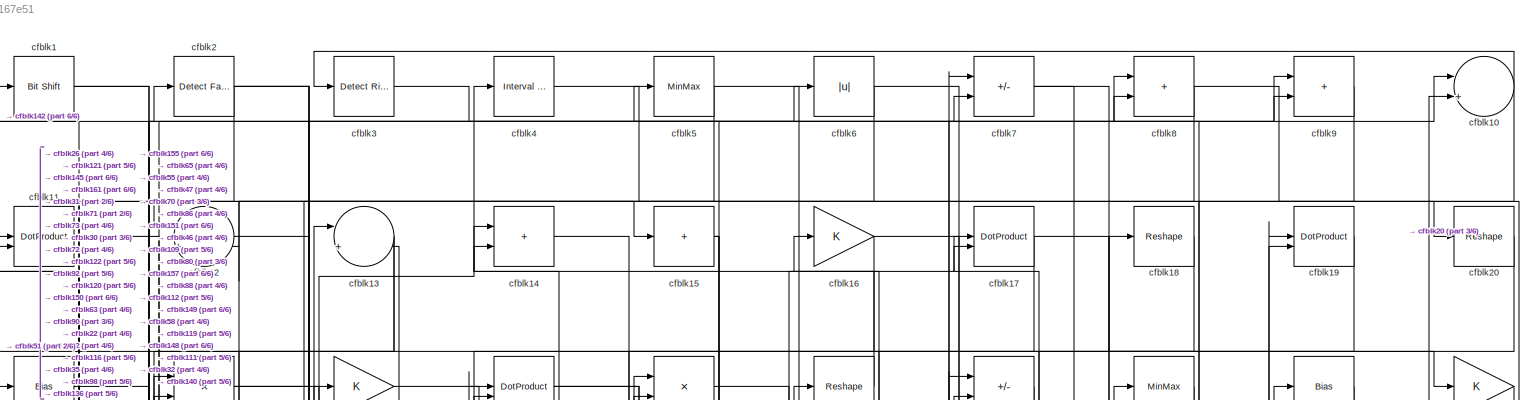
[diagram: root canvas - part 1/6, full width, top band]
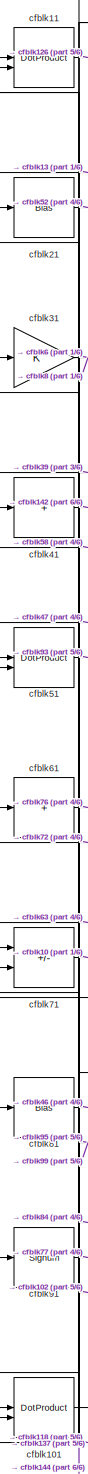
[diagram: root canvas - part 2/6, middle left region]
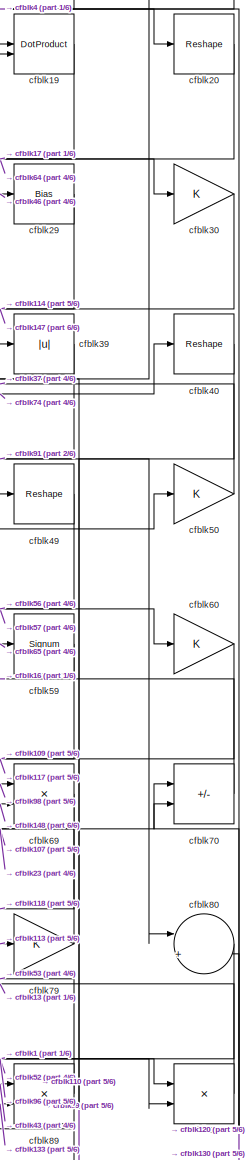
[diagram: root canvas - part 3/6, top right region]
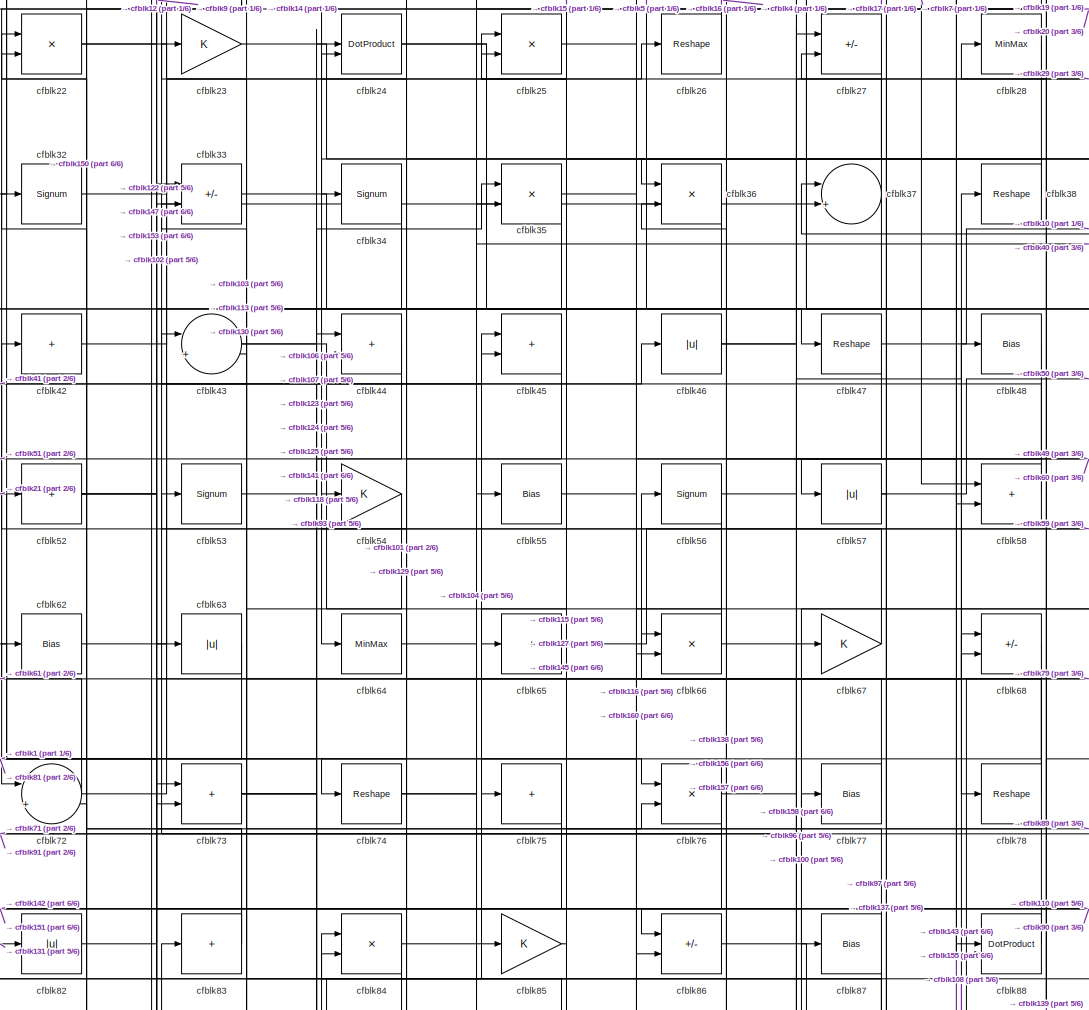
[diagram: root canvas - part 4/6, top center region]
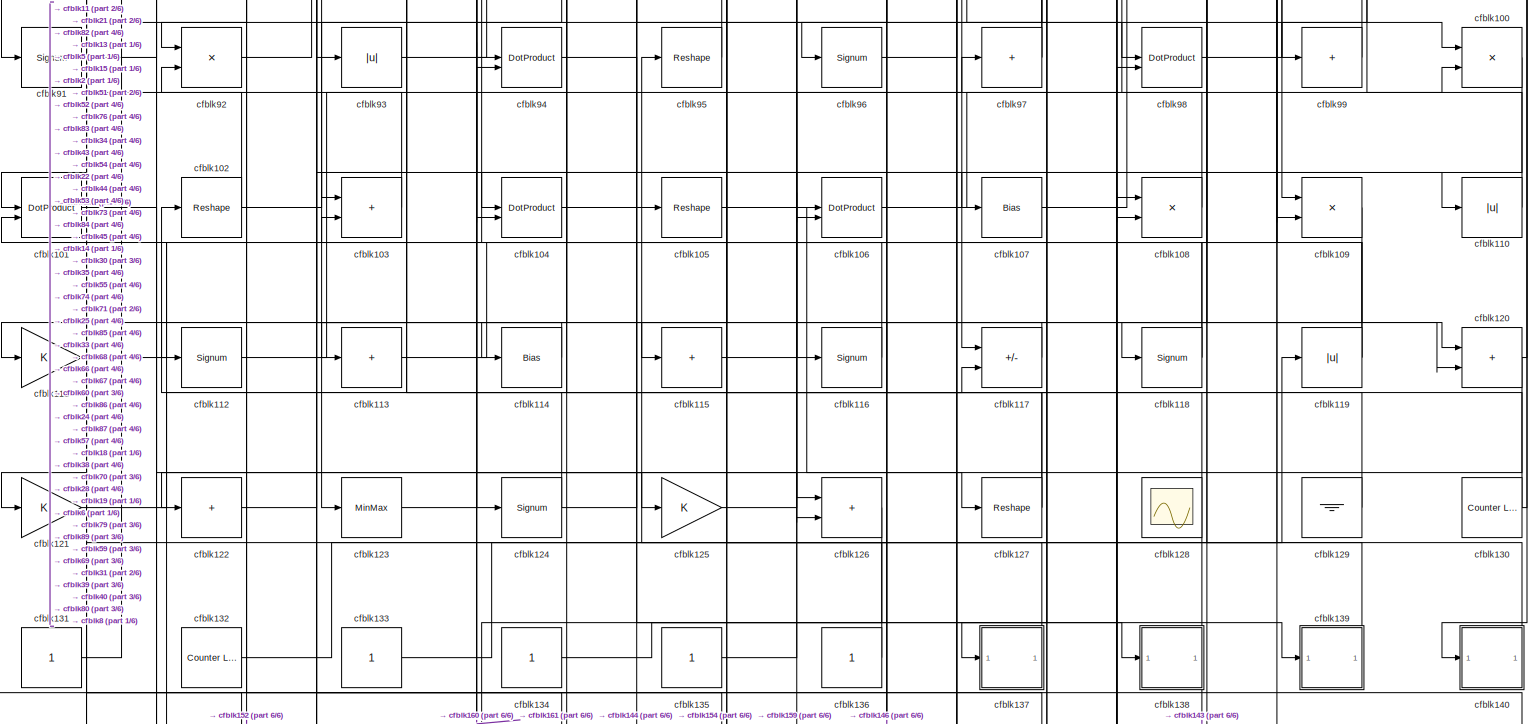
[diagram: root canvas - part 5/6, full width, bottom band]
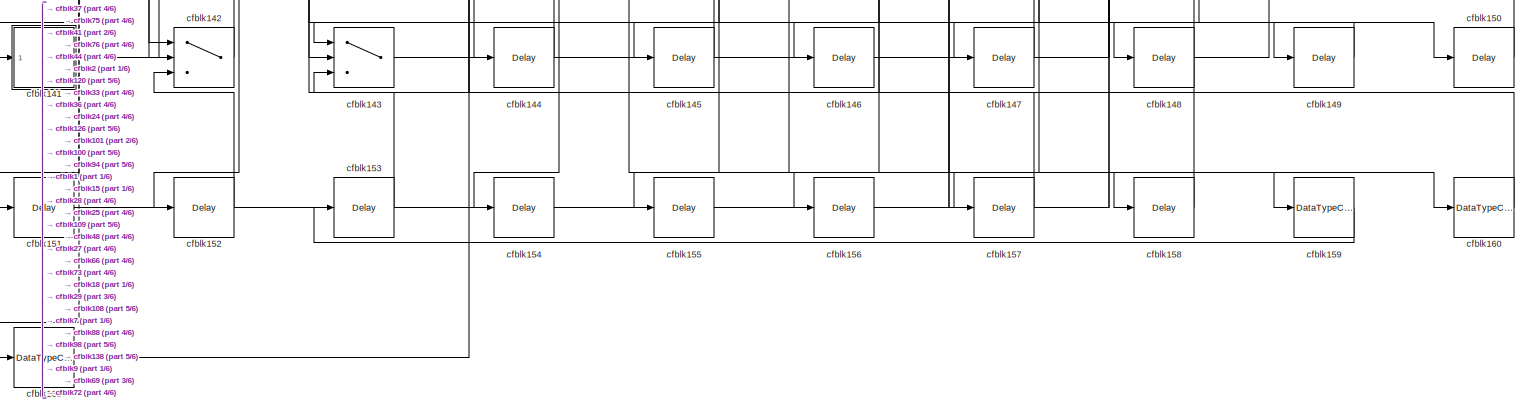
[diagram: root canvas - part 6/6, full width, bottom band]
MODEL slx_d6f4b8167e51
KIND model
CONFIG AbsTol = auto
CONFIG EnableMultiTasking = off
CONFIG FixedStep = auto
CONFIG MaxStep = auto
CONFIG MinStep = auto
CONFIG RelTol = 1e-3
CONFIG SampleTimeConstraint = Unconstrained
CONFIG SolverName = VariableStepAuto
CONFIG StartTime = 0.0
CONFIG StopTime = 10.0
BLOCK [Reference] cfblk1  REF=hdlsllib/Logic and Bit
Operations/Bit Shift
  SourceBlock = hdlsllib/Logic and Bit\nOperations/Bit Shift
  SourceType = Bit Shift
BLOCK [Sum] cfblk10
  Inputs = |++
BLOCK [Product] cfblk100
  Inputs = */
  RndMeth = Zero
  SaturateOnIntegerOverflow = on
BLOCK [DotProduct] cfblk101
  OutDataTypeStr = Inherit: Inherit via internal rule
BLOCK [Reshape] cfblk102
BLOCK [Sum] cfblk103
  IconShape = rectangular
BLOCK [DotProduct] cfblk104
  OutDataTypeStr = Inherit: Inherit via internal rule
BLOCK [Reshape] cfblk105
BLOCK [DotProduct] cfblk106
  OutDataTypeStr = Inherit: Inherit via internal rule
BLOCK [Bias] cfblk107
  Bias = 0.0
  SaturateOnIntegerOverflow = off
BLOCK [Product] cfblk108
  Inputs = */
  RndMeth = Zero
  SaturateOnIntegerOverflow = on
BLOCK [Product] cfblk109
  Inputs = */
  RndMeth = Zero
  SaturateOnIntegerOverflow = on
BLOCK [DotProduct] cfblk11
  OutDataTypeStr = Inherit: Inherit via internal rule
BLOCK [Abs] cfblk110
  SaturateOnIntegerOverflow = off
BLOCK [Gain] cfblk111
BLOCK [Signum] cfblk112
BLOCK [Sum] cfblk113
  IconShape = rectangular
  Inputs = +
BLOCK [Bias] cfblk114
  Bias = 0.0
  SaturateOnIntegerOverflow = off
BLOCK [Sum] cfblk115
  IconShape = rectangular
  Inputs = +
BLOCK [Signum] cfblk116
BLOCK [Sum] cfblk117
  IconShape = rectangular
  Inputs = +-
BLOCK [Signum] cfblk118
BLOCK [Abs] cfblk119
  SaturateOnIntegerOverflow = off
BLOCK [Sum] cfblk12
  Inputs = |++
BLOCK [Sum] cfblk120
  IconShape = rectangular
BLOCK [Gain] cfblk121
BLOCK [Sum] cfblk122
  IconShape = rectangular
  Inputs = +
BLOCK [MinMax] cfblk123
BLOCK [Signum] cfblk124
BLOCK [Gain] cfblk125
BLOCK [Sum] cfblk126
  IconShape = rectangular
BLOCK [Reshape] cfblk127
BLOCK [Scope] cfblk128
  Floating = on
  NumInputPorts = 1
  ScopeSpecificationString = Simulink.scopes.TimeScopeBlockCfg('CurrentConfiguration', extmgr.ConfigurationSet(extmgr.Configuration('Core','General UI',true,'FigureColor',[0.156862745098039 0.156862745098039 0.156862745098039]),extmgr.Configuration('Core','Source UI',true),extmgr.Configuration('Sources','WiredSimulink',true,'DataLoggingVariableName','ScopeData1','DataLoggingSaveFormat','StructureWithTime','DataLoggingLimitDat...<+2713ch>
BLOCK [Ground] cfblk129
BLOCK [Sum] cfblk13
  Inputs = |++
BLOCK [Reference] cfblk130  REF=hdlsllib/Sources/Counter
Limited
  SourceBlock = hdlsllib/Sources/Counter\nLimited
  SourceType = Counter Limited
BLOCK [Constant] cfblk131
  SampleTime = -1
BLOCK [Reference] cfblk132  REF=hdlsllib/Sources/Counter
Limited
  SourceBlock = hdlsllib/Sources/Counter\nLimited
  SourceType = Counter Limited
BLOCK [Constant] cfblk133
  SampleTime = -1
BLOCK [Constant] cfblk134
  SampleTime = -1
BLOCK [Constant] cfblk135
  SampleTime = -1
BLOCK [Constant] cfblk136
  SampleTime = -1
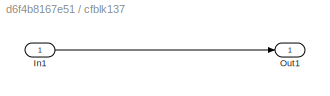
BLOCK [SubSystem] cfblk137
  LibrarySourceBlock = hdlsllib/Ports &\nSubsystems/Subsystem
BLOCK [Inport] cfblk137/In1
BLOCK [Outport] cfblk137/Out1
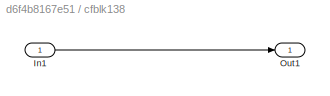
BLOCK [SubSystem] cfblk138
  LibrarySourceBlock = hdlsllib/Ports &\nSubsystems/Subsystem
BLOCK [Inport] cfblk138/In1
BLOCK [Outport] cfblk138/Out1
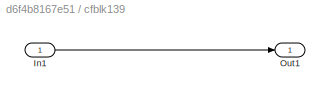
BLOCK [SubSystem] cfblk139
  LibrarySourceBlock = hdlsllib/Ports &\nSubsystems/Subsystem
BLOCK [Inport] cfblk139/In1
BLOCK [Outport] cfblk139/Out1
BLOCK [Sum] cfblk14
  IconShape = rectangular
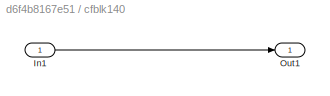
BLOCK [SubSystem] cfblk140
  LibrarySourceBlock = hdlsllib/Ports &\nSubsystems/Subsystem
BLOCK [Inport] cfblk140/In1
BLOCK [Outport] cfblk140/Out1
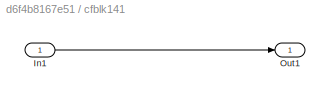
BLOCK [SubSystem] cfblk141
  LibrarySourceBlock = hdlsllib/Ports &\nSubsystems/Subsystem
BLOCK [Inport] cfblk141/In1
BLOCK [Outport] cfblk141/Out1
BLOCK [Switch] cfblk142
  InputSameDT = off
  SaturateOnIntegerOverflow = off
BLOCK [Switch] cfblk143
  InputSameDT = off
  SaturateOnIntegerOverflow = off
BLOCK [Delay] cfblk144
  InputPortMap = u0
  SampleTime = 1
BLOCK [Delay] cfblk145
  InputPortMap = u0
  SampleTime = 1
BLOCK [Delay] cfblk146
  InputPortMap = u0
  SampleTime = 1
BLOCK [Delay] cfblk147
  InputPortMap = u0
  SampleTime = 1
BLOCK [Delay] cfblk148
  InputPortMap = u0
  SampleTime = 1
BLOCK [Delay] cfblk149
  InputPortMap = u0
  SampleTime = 1
BLOCK [Sum] cfblk15
  IconShape = rectangular
  Inputs = +
BLOCK [Delay] cfblk150
  InputPortMap = u0
  SampleTime = 1
BLOCK [Delay] cfblk151
  InputPortMap = u0
  SampleTime = 1
BLOCK [Delay] cfblk152
  InputPortMap = u0
  SampleTime = 1
BLOCK [Delay] cfblk153
  InputPortMap = u0
  SampleTime = 1
BLOCK [Delay] cfblk154
  InputPortMap = u0
  SampleTime = 1
BLOCK [Delay] cfblk155
  InputPortMap = u0
  SampleTime = 1
BLOCK [Delay] cfblk156
  InputPortMap = u0
  SampleTime = 1
BLOCK [Delay] cfblk157
  InputPortMap = u0
  SampleTime = 1
BLOCK [Delay] cfblk158
  InputPortMap = u0
  SampleTime = 1
BLOCK [DataTypeConversion] cfblk159
  OutDataTypeStr = uint8
  RndMeth = Floor
  SaturateOnIntegerOverflow = off
BLOCK [Gain] cfblk16
BLOCK [DataTypeConversion] cfblk160
  OutDataTypeStr = uint8
  RndMeth = Floor
  SaturateOnIntegerOverflow = off
BLOCK [DataTypeConversion] cfblk161
  OutDataTypeStr = uint8
  RndMeth = Floor
  SaturateOnIntegerOverflow = off
BLOCK [DotProduct] cfblk17
  OutDataTypeStr = Inherit: Inherit via internal rule
BLOCK [Reshape] cfblk18
BLOCK [DotProduct] cfblk19
  OutDataTypeStr = Inherit: Inherit via internal rule
BLOCK [Reference] cfblk2  REF=hdlsllib/Logic and Bit
Operations/Detect Fall
Nonpositive
  SourceBlock = hdlsllib/Logic and Bit\nOperations/Detect Fall\nNonpositive
  SourceType = Detect Fall Nonpositive
BLOCK [Reshape] cfblk20
BLOCK [Bias] cfblk21
  Bias = 0.0
  SaturateOnIntegerOverflow = off
BLOCK [Product] cfblk22
  Inputs = */
  RndMeth = Zero
  SaturateOnIntegerOverflow = on
BLOCK [Gain] cfblk23
BLOCK [DotProduct] cfblk24
  OutDataTypeStr = Inherit: Inherit via internal rule
BLOCK [Product] cfblk25
  Inputs = */
  RndMeth = Zero
  SaturateOnIntegerOverflow = on
BLOCK [Reshape] cfblk26
BLOCK [Sum] cfblk27
  IconShape = rectangular
  Inputs = +-
BLOCK [MinMax] cfblk28
BLOCK [Bias] cfblk29
  Bias = 0.0
  SaturateOnIntegerOverflow = off
BLOCK [Reference] cfblk3  REF=hdlsllib/Logic and Bit
Operations/Detect Rise
Positive
  SourceBlock = hdlsllib/Logic and Bit\nOperations/Detect Rise\nPositive
  SourceType = Detect Rise Positive
BLOCK [Gain] cfblk30
BLOCK [Gain] cfblk31
BLOCK [Signum] cfblk32
BLOCK [Sum] cfblk33
  IconShape = rectangular
  Inputs = +-
BLOCK [Signum] cfblk34
BLOCK [Product] cfblk35
  Inputs = */
  RndMeth = Zero
  SaturateOnIntegerOverflow = on
BLOCK [Product] cfblk36
  Inputs = */
  RndMeth = Zero
  SaturateOnIntegerOverflow = on
BLOCK [Sum] cfblk37
  Inputs = |++
BLOCK [Reshape] cfblk38
BLOCK [Abs] cfblk39
  SaturateOnIntegerOverflow = off
BLOCK [Reference] cfblk4  REF=hdlsllib/Logic and Bit
Operations/Interval Test
  SourceBlock = hdlsllib/Logic and Bit\nOperations/Interval Test
  SourceType = Interval Test
BLOCK [Reshape] cfblk40
BLOCK [Sum] cfblk41
  IconShape = rectangular
  Inputs = +
BLOCK [Sum] cfblk42
  IconShape = rectangular
  Inputs = +
BLOCK [Sum] cfblk43
  Inputs = |++
BLOCK [Sum] cfblk44
  IconShape = rectangular
BLOCK [Sum] cfblk45
  IconShape = rectangular
BLOCK [Abs] cfblk46
  SaturateOnIntegerOverflow = off
BLOCK [Reshape] cfblk47
BLOCK [Bias] cfblk48
  Bias = 0.0
  SaturateOnIntegerOverflow = off
BLOCK [Reshape] cfblk49
BLOCK [MinMax] cfblk5
BLOCK [Gain] cfblk50
BLOCK [DotProduct] cfblk51
  OutDataTypeStr = Inherit: Inherit via internal rule
BLOCK [Sum] cfblk52
  IconShape = rectangular
  Inputs = +
BLOCK [Signum] cfblk53
BLOCK [Gain] cfblk54
BLOCK [Bias] cfblk55
  Bias = 0.0
  SaturateOnIntegerOverflow = off
BLOCK [Signum] cfblk56
BLOCK [Abs] cfblk57
  SaturateOnIntegerOverflow = off
BLOCK [Sum] cfblk58
  IconShape = rectangular
BLOCK [Signum] cfblk59
BLOCK [Abs] cfblk6
  SaturateOnIntegerOverflow = off
BLOCK [Gain] cfblk60
BLOCK [Sum] cfblk61
  IconShape = rectangular
  Inputs = +
BLOCK [Bias] cfblk62
  Bias = 0.0
  SaturateOnIntegerOverflow = off
BLOCK [Abs] cfblk63
  SaturateOnIntegerOverflow = off
BLOCK [MinMax] cfblk64
BLOCK [Sum] cfblk65
  IconShape = rectangular
  Inputs = +
BLOCK [Product] cfblk66
  Inputs = */
  RndMeth = Zero
  SaturateOnIntegerOverflow = on
BLOCK [Gain] cfblk67
BLOCK [Sum] cfblk68
  IconShape = rectangular
  Inputs = +-
BLOCK [Product] cfblk69
  Inputs = */
  RndMeth = Zero
  SaturateOnIntegerOverflow = on
BLOCK [Sum] cfblk7
  IconShape = rectangular
  Inputs = +-
BLOCK [Sum] cfblk70
  IconShape = rectangular
  Inputs = +-
BLOCK [Sum] cfblk71
  IconShape = rectangular
  Inputs = +-
BLOCK [Sum] cfblk72
  Inputs = |++
BLOCK [Sum] cfblk73
  IconShape = rectangular
BLOCK [Reshape] cfblk74
BLOCK [Sum] cfblk75
  IconShape = rectangular
  Inputs = +
BLOCK [Product] cfblk76
  Inputs = */
  RndMeth = Zero
  SaturateOnIntegerOverflow = on
BLOCK [Bias] cfblk77
  Bias = 0.0
  SaturateOnIntegerOverflow = off
BLOCK [Reshape] cfblk78
BLOCK [Gain] cfblk79
BLOCK [Sum] cfblk8
  IconShape = rectangular
BLOCK [Sum] cfblk80
  Inputs = |++
BLOCK [Bias] cfblk81
  Bias = 0.0
  SaturateOnIntegerOverflow = off
BLOCK [Abs] cfblk82
  SaturateOnIntegerOverflow = off
BLOCK [Sum] cfblk83
  IconShape = rectangular
  Inputs = +
BLOCK [Product] cfblk84
  Inputs = */
  RndMeth = Zero
  SaturateOnIntegerOverflow = on
BLOCK [Gain] cfblk85
BLOCK [Sum] cfblk86
  IconShape = rectangular
  Inputs = +-
BLOCK [Bias] cfblk87
  Bias = 0.0
  SaturateOnIntegerOverflow = off
BLOCK [DotProduct] cfblk88
  OutDataTypeStr = Inherit: Inherit via internal rule
BLOCK [Product] cfblk89
  Inputs = */
  RndMeth = Zero
  SaturateOnIntegerOverflow = on
BLOCK [Sum] cfblk9
  IconShape = rectangular
BLOCK [Product] cfblk90
  Inputs = */
  RndMeth = Zero
  SaturateOnIntegerOverflow = on
BLOCK [Signum] cfblk91
BLOCK [Product] cfblk92
  Inputs = */
  RndMeth = Zero
  SaturateOnIntegerOverflow = on
BLOCK [Abs] cfblk93
  SaturateOnIntegerOverflow = off
BLOCK [DotProduct] cfblk94
  OutDataTypeStr = Inherit: Inherit via internal rule
BLOCK [Reshape] cfblk95
BLOCK [Signum] cfblk96
BLOCK [Sum] cfblk97
  IconShape = rectangular
  Inputs = +
BLOCK [DotProduct] cfblk98
  OutDataTypeStr = Inherit: Inherit via internal rule
BLOCK [Sum] cfblk99
  IconShape = rectangular
  Inputs = +
LINE cfblk100:1 -> cfblk154:1
LINE cfblk101:1 -> cfblk126:2
NET cfblk102:1 -> cfblk11:1, cfblk83:1
LINE cfblk103:1 -> cfblk92:2
LINE cfblk104:1 -> cfblk55:1
LINE cfblk105:1 -> cfblk127:1
LINE cfblk106:1 -> cfblk100:2
LINE cfblk107:1 -> cfblk70:1
LINE cfblk108:1 -> cfblk38:1
LINE cfblk109:1 -> cfblk146:1
NET cfblk10:1 -> cfblk12:2, cfblk3:1
LINE cfblk110:1 -> cfblk39:1
LINE cfblk111:1 -> cfblk19:1
LINE cfblk112:1 -> cfblk18:1
LINE cfblk113:1 -> cfblk79:1
LINE cfblk114:1 -> cfblk112:1
LINE cfblk115:1 -> cfblk68:2
LINE cfblk116:1 -> cfblk14:2
LINE cfblk117:1 -> cfblk111:1
NET cfblk118:1 -> cfblk11:2, cfblk84:1
NET cfblk119:1 -> cfblk13:2, cfblk8:1
LINE cfblk11:1 -> cfblk126:1
NET cfblk120:1 -> cfblk152:1, cfblk80:2
LINE cfblk121:1 -> cfblk105:1
LINE cfblk122:1 -> cfblk76:2
LINE cfblk123:1 -> cfblk44:1
NET cfblk124:1 -> cfblk103:2, cfblk117:2
LINE cfblk125:1 -> cfblk97:1
LINE cfblk126:1 -> cfblk144:1
NET cfblk127:1 -> cfblk102:1, cfblk25:1
LINE cfblk129:1 -> cfblk84:2
LINE cfblk12:1 -> cfblk63:1
NET cfblk130:1 -> cfblk43:2, cfblk70:2
LINE cfblk131:1 -> cfblk82:1
LINE cfblk132:1 -> cfblk119:1
LINE cfblk133:1 -> cfblk89:2
LINE cfblk134:1 -> cfblk138:1
LINE cfblk135:1 -> cfblk106:1
LINE cfblk136:1 -> cfblk5:1
LINE cfblk137/In1:1 -> cfblk137/Out1:1
LINE cfblk137:1 -> cfblk21:1
LINE cfblk138/In1:1 -> cfblk138/Out1:1
NET cfblk138:1 -> cfblk143:3, cfblk66:1
LINE cfblk139/In1:1 -> cfblk139/Out1:1
LINE cfblk139:1 -> cfblk28:1
NET cfblk13:1 -> cfblk51:2, cfblk92:1
LINE cfblk140/In1:1 -> cfblk140/Out1:1
LINE cfblk140:1 -> cfblk95:1
LINE cfblk141/In1:1 -> cfblk141/Out1:1
LINE cfblk141:1 -> cfblk44:2
LINE cfblk142:1 -> cfblk2:1
LINE cfblk143:1 -> cfblk88:1
LINE cfblk144:1 -> cfblk101:2
LINE cfblk145:1 -> cfblk1:1
LINE cfblk146:1 -> cfblk108:1
LINE cfblk147:1 -> cfblk73:1
LINE cfblk148:1 -> cfblk69:2
LINE cfblk149:1 -> cfblk143:1
LINE cfblk14:1 -> cfblk98:1
LINE cfblk150:1 -> cfblk72:2
LINE cfblk151:1 -> cfblk7:1
LINE cfblk152:1 -> cfblk142:3
LINE cfblk153:1 -> cfblk33:1
LINE cfblk154:1 -> cfblk98:2
LINE cfblk155:1 -> cfblk88:2
LINE cfblk156:1 -> cfblk27:1
LINE cfblk157:1 -> cfblk36:2
LINE cfblk158:1 -> cfblk24:1
LINE cfblk159:1 -> cfblk153:1
NET cfblk15:1 -> cfblk155:1, cfblk65:1
LINE cfblk160:1 -> cfblk94:1
LINE cfblk161:1 -> cfblk94:2
NET cfblk16:1 -> cfblk35:2, cfblk80:1
NET cfblk17:1 -> cfblk30:1, cfblk72:1
LINE cfblk18:1 -> cfblk157:1
LINE cfblk19:1 -> cfblk86:1
NET cfblk1:1 -> cfblk73:2, cfblk90:1
LINE cfblk20:1 -> cfblk64:1
LINE cfblk21:1 -> cfblk52:1
NET cfblk22:1 -> cfblk124:1, cfblk9:1
LINE cfblk23:1 -> cfblk49:1
NET cfblk24:1 -> cfblk66:2, cfblk78:1
LINE cfblk25:1 -> cfblk160:1
LINE cfblk26:1 -> cfblk4:1
LINE cfblk27:1 -> cfblk36:1
LINE cfblk28:1 -> cfblk145:1
LINE cfblk29:1 -> cfblk147:1
NET cfblk2:1 -> cfblk120:1, cfblk120:2, cfblk150:1, cfblk161:1
LINE cfblk30:1 -> cfblk114:1
NET cfblk31:1 -> cfblk6:1, cfblk8:2
LINE cfblk32:1 -> cfblk19:2
LINE cfblk33:1 -> cfblk116:1
LINE cfblk34:1 -> cfblk113:1
NET cfblk35:1 -> cfblk104:1, cfblk58:2
LINE cfblk36:1 -> cfblk143:2
NET cfblk37:1 -> cfblk141:1, cfblk27:2
LINE cfblk38:1 -> cfblk34:1
LINE cfblk39:1 -> cfblk91:1
LINE cfblk3:1 -> cfblk7:2
LINE cfblk40:1 -> cfblk99:1
LINE cfblk41:1 -> cfblk142:1
LINE cfblk42:1 -> cfblk26:1
NET cfblk43:1 -> cfblk87:1, cfblk89:1
LINE cfblk44:1 -> cfblk104:2
LINE cfblk45:1 -> cfblk74:1
NET cfblk46:1 -> cfblk29:1, cfblk9:2
NET cfblk47:1 -> cfblk10:2, cfblk51:1
LINE cfblk48:1 -> cfblk156:1
LINE cfblk49:1 -> cfblk57:1
LINE cfblk4:1 -> cfblk20:1
LINE cfblk50:1 -> cfblk37:1
LINE cfblk51:1 -> cfblk93:1
NET cfblk52:1 -> cfblk110:1, cfblk22:1, cfblk37:2, cfblk90:2
LINE cfblk53:1 -> cfblk107:1
LINE cfblk54:1 -> cfblk103:1
LINE cfblk55:1 -> cfblk17:1
NET cfblk56:1 -> cfblk60:1, cfblk86:2
NET cfblk57:1 -> cfblk137:1, cfblk50:1
LINE cfblk58:1 -> cfblk41:1
LINE cfblk59:1 -> cfblk109:1
NET cfblk5:1 -> cfblk122:1, cfblk47:1
LINE cfblk60:1 -> cfblk117:1
LINE cfblk61:1 -> cfblk76:1
LINE cfblk62:1 -> cfblk14:1
LINE cfblk63:1 -> cfblk81:1
LINE cfblk64:1 -> cfblk85:1
LINE cfblk65:1 -> cfblk59:1
NET cfblk66:1 -> cfblk158:1, cfblk43:1
LINE cfblk67:1 -> cfblk42:1
LINE cfblk68:1 -> cfblk75:1
LINE cfblk69:1 -> cfblk118:1
NET cfblk6:1 -> cfblk109:2, cfblk12:1
LINE cfblk70:1 -> cfblk16:1
LINE cfblk71:1 -> cfblk10:1
NET cfblk72:1 -> cfblk45:1, cfblk61:1
NET cfblk73:1 -> cfblk106:2, cfblk125:1, cfblk35:1
NET cfblk74:1 -> cfblk139:1, cfblk40:1
LINE cfblk75:1 -> cfblk151:1
NET cfblk76:1 -> cfblk142:2, cfblk48:1, cfblk71:2
LINE cfblk77:1 -> cfblk54:1
NET cfblk78:1 -> cfblk56:1, cfblk62:1
LINE cfblk79:1 -> cfblk23:1
NET cfblk7:1 -> cfblk149:1, cfblk58:1
LINE cfblk80:1 -> cfblk96:1
LINE cfblk81:1 -> cfblk46:1
LINE cfblk82:1 -> cfblk68:1
NET cfblk83:1 -> cfblk22:2, cfblk32:1
NET cfblk84:1 -> cfblk101:1, cfblk108:2
LINE cfblk85:1 -> cfblk115:1
LINE cfblk86:1 -> cfblk100:1
NET cfblk87:1 -> cfblk123:1, cfblk25:2
LINE cfblk88:1 -> cfblk17:2
LINE cfblk89:1 -> cfblk53:1
NET cfblk8:1 -> cfblk121:1, cfblk140:1
LINE cfblk90:1 -> cfblk13:1
LINE cfblk91:1 -> cfblk77:1
LINE cfblk92:1 -> cfblk15:1
LINE cfblk93:1 -> cfblk45:2
LINE cfblk94:1 -> cfblk159:1
LINE cfblk95:1 -> cfblk71:1
LINE cfblk96:1 -> cfblk67:1
NET cfblk97:1 -> cfblk24:2, cfblk33:2
LINE cfblk98:1 -> cfblk69:1
LINE cfblk99:1 -> cfblk31:1
LINE cfblk9:1 -> cfblk148:1
note: NET lines group one-source signal fan-out (src -> all destinations, sorted); 1:1 wires keep LINE
